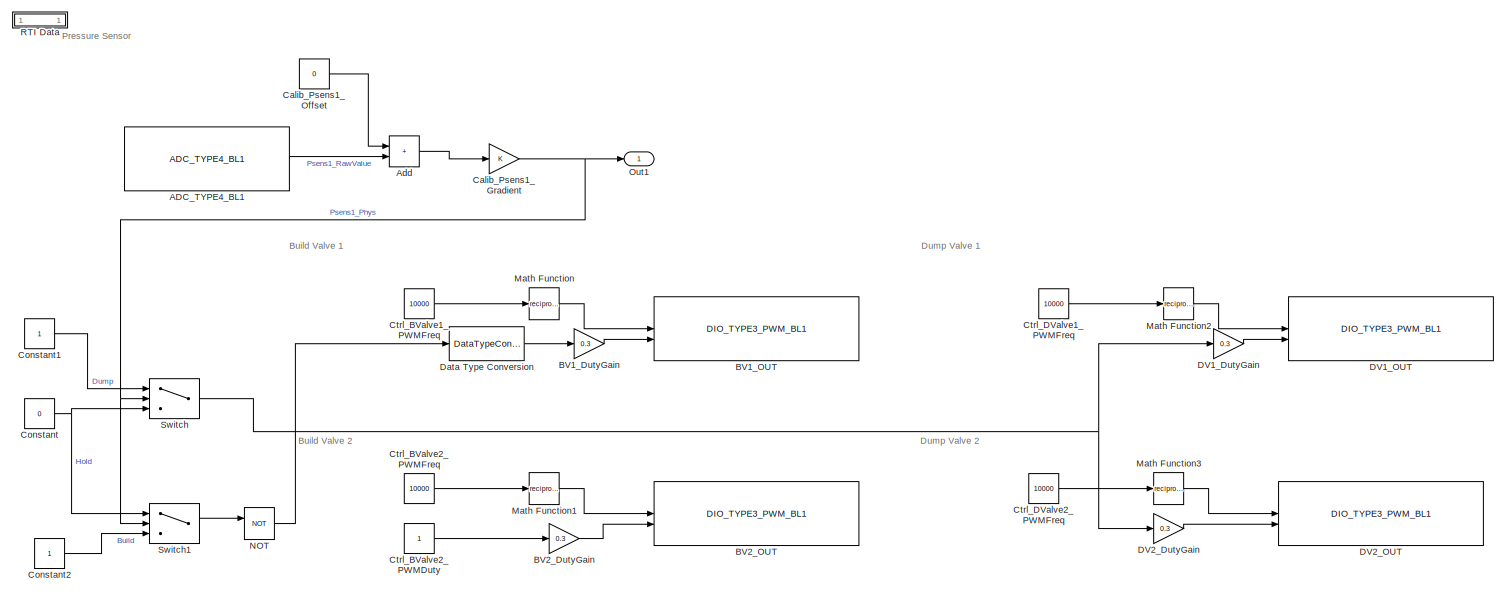
[diagram: root canvas - part 1/2, most of the canvas]
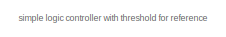
[diagram: root canvas - part 2/2, bottom left region]
MODEL slx_88bec931c29f
KIND model
CONFIG AbsTol = auto
CONFIG EnableMultiTasking = off
CONFIG FixedStep = 0.0001
CONFIG InitFcn = , if any(exist('rtifpga_mdlclblib', 'file') ~= 0), rtifpga_mdlclblib('Init', bdroot); end,\n
CONFIG MaxStep = auto
CONFIG MinStep = auto
CONFIG PostLoadFcn = , if any(exist('dsrtsu_mdlpostloadfcn', 'file') ~= 0), dsrtsu_mdlpostloadfcn('Execute', bdroot); end, \n
CONFIG RelTol = 1e-3
CONFIG SampleTimeConstraint = Unconstrained
CONFIG SolverName = ode1
CONFIG StartTime = 0.0
CONFIG StopTime = Inf
BLOCK [Reference] ADC_TYPE4_BL1  REF=rti1401lib_adc_type4/ADC_TYPE4_BL1
  SourceBlock = rti1401lib_adc_type4/ADC_TYPE4_BL1
  SourceType = RTI
BLOCK [Sum] Add
  IconShape = rectangular
BLOCK [Gain] BV1_DutyGain
  Gain = 0.3
BLOCK [Reference] BV1_OUT  REF=rti1401lib_dio_type3/DIO_TYPE3_PWM_BL1
  SourceBlock = rti1401lib_dio_type3/DIO_TYPE3_PWM_BL1
  SourceType = RTI
BLOCK [Gain] BV2_DutyGain
  Gain = 0.3
BLOCK [Reference] BV2_OUT  REF=rti1401lib_dio_type3/DIO_TYPE3_PWM_BL1
  SourceBlock = rti1401lib_dio_type3/DIO_TYPE3_PWM_BL1
  SourceType = RTI
BLOCK [Gain] Calib_Psens1_Gradient
BLOCK [Constant] Calib_Psens1_Offset
  Value = 0
BLOCK [Constant] Constant
  Value = 0
BLOCK [Constant] Constant1
BLOCK [Constant] Constant2
BLOCK [Constant] Ctrl_BValve1_PWMFreq
  Value = 10000
BLOCK [Constant] Ctrl_BValve2_PWMDuty
BLOCK [Constant] Ctrl_BValve2_PWMFreq
  Value = 10000
BLOCK [Constant] Ctrl_DValve1_PWMFreq
  Value = 10000
BLOCK [Constant] Ctrl_DValve2_PWMFreq
  Value = 10000
BLOCK [Gain] DV1_DutyGain
  Gain = 0.3
BLOCK [Reference] DV1_OUT  REF=rti1401lib_dio_type3/DIO_TYPE3_PWM_BL1
  SourceBlock = rti1401lib_dio_type3/DIO_TYPE3_PWM_BL1
  SourceType = RTI
BLOCK [Gain] DV2_DutyGain
  Gain = 0.3
BLOCK [Reference] DV2_OUT  REF=rti1401lib_dio_type3/DIO_TYPE3_PWM_BL1
  SourceBlock = rti1401lib_dio_type3/DIO_TYPE3_PWM_BL1
  SourceType = RTI
BLOCK [DataTypeConversion] Data Type Conversion
  OutDataTypeStr = double
  RndMeth = Floor
  SaturateOnIntegerOverflow = off
BLOCK [Math] Math Function
  Operator = reciprocal
BLOCK [Math] Math Function1
  Operator = reciprocal
BLOCK [Math] Math Function2
  Operator = reciprocal
BLOCK [Math] Math Function3
  Operator = reciprocal
BLOCK [Logic] NOT
  AllPortsSameDT = off
  IconShape = distinctive
  Operator = NOT
  OutDataTypeStr = boolean
BLOCK [Outport] Out1
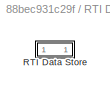
BLOCK [SubSystem] RTI Data
  CopyFcn = if exist('rtidc'), try,  rtidc('DataHostBlockClbCopy', gcbh); catch, disp(['Warning: ''CopyFcn'' for RTI Data block failed: ' lasterr]); end, end,
  DeleteFcn = if exist('rtidc'), try,  rtidc('DataHostBlockClbDelete', gcbh); catch, disp(['Warning: ''DeleteFcn'' for RTI Data block failed: ' lasterr]); end, end,
  LoadFcn = if exist('rtidc'), try,  rtidc('DataHostBlockClbLoad', gcbh); catch, disp(['Warning: ''LoadFcn'' for RTI Data block failed: ' lasterr]); end, end,
  ModelCloseFcn = if exist('rtidc'), try,  rtidc('DataHostBlockClbModelClose', gcbh); catch, disp(['Warning: ''ModelCloseFcn'' for RTI Data block failed: ' lasterr]); end, end,
  NameChangeFcn = if exist('rtidc'), try,  rtidc('DataHostBlockClbNameChange', gcbh); catch, disp(['Warning: ''NameChangeFcn'' for RTI Data block failed: ' lasterr]); end, end,
  PostSaveFcn = if exist('rtidc'), try,  rtidc('DataHostBlockClbPostSave', gcbh); catch, disp(['Warning: ''PostSaveFcn'' for RTI Data block failed: ' lasterr]); end, end,
  PreSaveFcn = if exist('rtidc'), try,  rtidc('DataHostBlockClbPreSave', gcbh); catch, disp(['Warning: ''PreSaveFcn'' for RTI Data block failed: ' lasterr]); end, end,
  Tag = struct('RTIDataServer',struct('RTIDataServerVs','2','RTIModelDescription','struct(''main'',''test02_mdl'',''sub'','''',''isMp'',0)'))
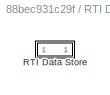
BLOCK [SubSystem] RTI Data/RTI Data Store
  Tag = struct('public',struct('sub',struct('name',{{'test02_mdl'}},'data',{{struct('TH',struct('thTaskInfo',struct('taskType',{'TIMER','HWINT','TMRINT','SWINT','GLINT'},'tasksNumOf',{1,0,0,0,0},'srcIds',{{'TIMERA'},{},{},{},{}},'taskNames',{{['Timer Task 1']},{},{},{},{}})),'th_tc',struct('dataType','TASK','taskGroupId','','taskGroupList',{{}},'taskSchedulingPolicy','FCFS','taskType','TIMER','blkh',-1,'s...<+712ch>
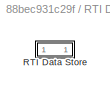
BLOCK [SubSystem] RTI Data/RTI Data Store/RTI Data Store
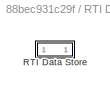
BLOCK [SubSystem] RTI Data/RTI Data Store/RTI Data Store/RTI Data Store
BLOCK [SubSystem] RTI Data/RTI Data Store/RTI Data Store/RTI Data Store/RTI Data Store
BLOCK [Switch] Switch
  Criteria = u2 > Threshold
  InputSameDT = off
  SaturateOnIntegerOverflow = off
  Threshold = 0.055
BLOCK [Switch] Switch1
  Criteria = u2 > Threshold
  InputSameDT = off
  SaturateOnIntegerOverflow = off
  Threshold = 0.035
ANNOTATION (root): Build Valve 1
ANNOTATION (root): Build Valve 2
ANNOTATION (root): Dump Valve 1
ANNOTATION (root): Dump Valve 2
ANNOTATION (root): Pressure Sensor
ANNOTATION (root): simple logic controller with threshold for reference
LINE ADC_TYPE4_BL1:1 -> Add:2
LINE Add:1 -> Calib_Psens1_Gradient:1
LINE BV1_DutyGain:1 -> BV1_OUT:2
LINE BV2_DutyGain:1 -> BV2_OUT:2
NET Calib_Psens1_Gradient:1 -> Out1:1, Switch1:2, Switch:2
LINE Calib_Psens1_Offset:1 -> Add:1
LINE Constant1:1 -> Switch:1
LINE Constant2:1 -> Switch1:3
NET Constant:1 -> Switch1:1, Switch:3
LINE Ctrl_BValve1_PWMFreq:1 -> Math Function:1
LINE Ctrl_BValve2_PWMDuty:1 -> BV2_DutyGain:1
LINE Ctrl_BValve2_PWMFreq:1 -> Math Function1:1
LINE Ctrl_DValve1_PWMFreq:1 -> Math Function2:1
LINE Ctrl_DValve2_PWMFreq:1 -> Math Function3:1
LINE DV1_DutyGain:1 -> DV1_OUT:2
LINE DV2_DutyGain:1 -> DV2_OUT:2
LINE Data Type Conversion:1 -> BV1_DutyGain:1
LINE Math Function1:1 -> BV2_OUT:1
LINE Math Function2:1 -> DV1_OUT:1
LINE Math Function3:1 -> DV2_OUT:1
LINE Math Function:1 -> BV1_OUT:1
LINE NOT:1 -> Data Type Conversion:1
LINE Switch1:1 -> NOT:1
NET Switch:1 -> DV1_DutyGain:1, DV2_DutyGain:1
note: NET lines group one-source signal fan-out (src -> all destinations, sorted); 1:1 wires keep LINE
